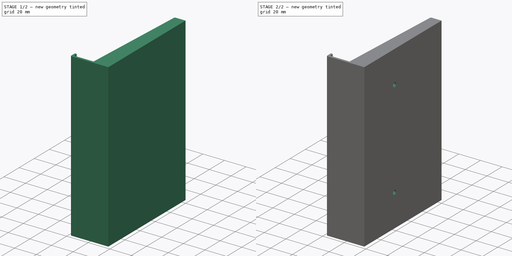
[diagram: build sequence overview — one tinted view per stage of 2, left to right]
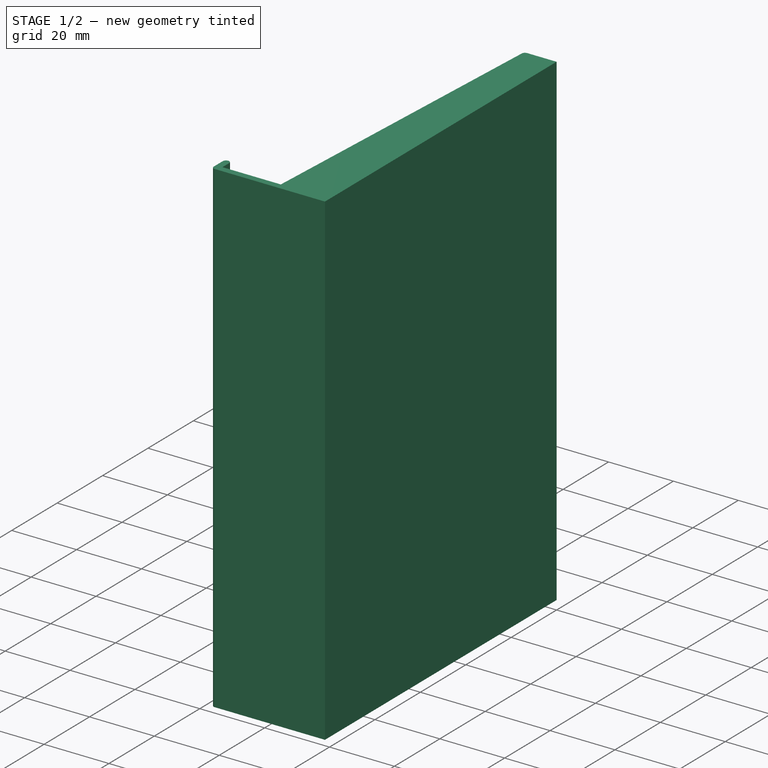
[diagram: stage 1 of 2 — iso view after this stage's code; geometry added in this stage tinted green]
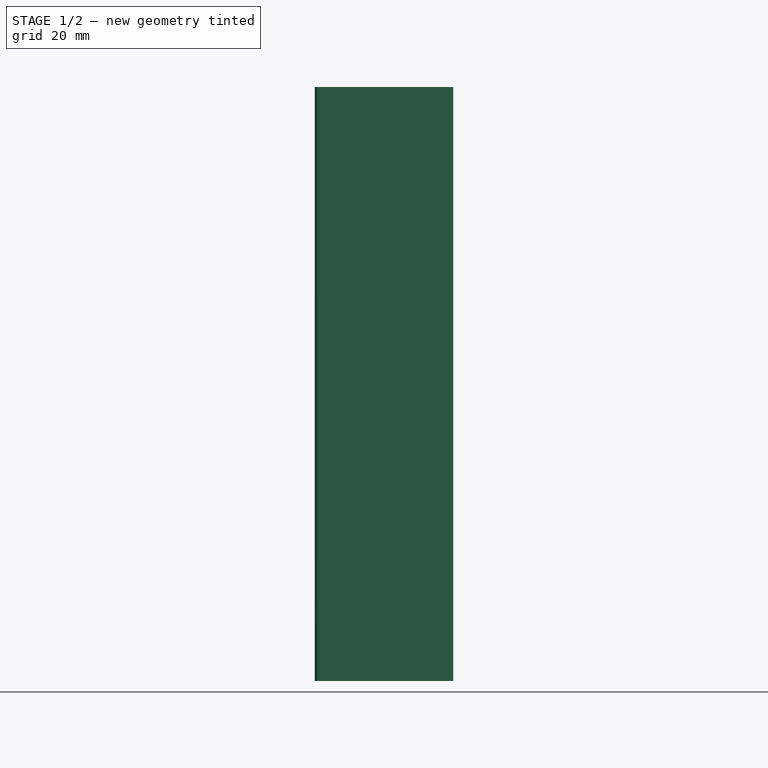
[diagram: stage 1 of 2 — front view after this stage's code; geometry added in this stage tinted green]
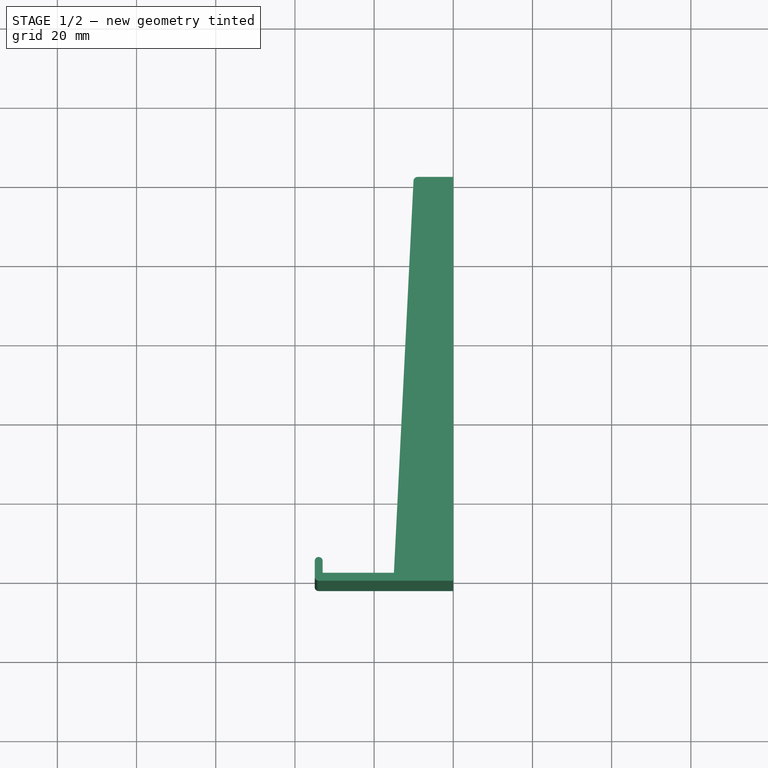
[diagram: stage 1 of 2 — top view after this stage's code; geometry added in this stage tinted green]
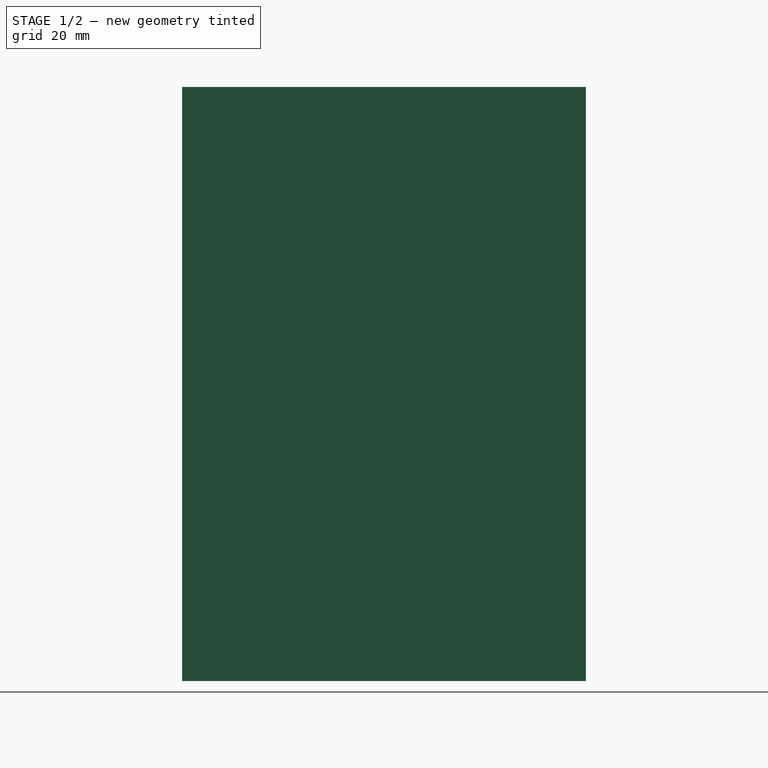
[diagram: stage 1 of 2 — right view after this stage's code; geometry added in this stage tinted green]
FCSTD DOCUMENT  (FreeCAD 0.19R24415 (Git))
Label: tablet-wall-holder
License: All rights reserved
LicenseURL: http://en.wikipedia.org/wiki/All_rights_reserved
objects: Sketcher::SketchObject×3, PartDesign::Pocket×2, PartDesign::Pad×1, PartDesign::Body×1
note: 10 computed .brp shape members not serialized (recipe doc carries the construction recipe); baked Part::Feature solids carry a one-line shape summary decoded from their .brp

FEATURE [Sketcher::SketchObject] Sketch
  FullyConstrained = true
  MapMode = 5
  Support = -> [XY_Plane]
  sketch-geometry (12):
    g0: LineSegment StartX=0 StartY=0 StartZ=0 EndX=-9.04875 EndY=0 EndZ=0
    g1: LineSegment StartX=-10.0475 StartY=-0.950062 StartZ=0 EndX=-15 EndY=-100 EndZ=0
    g2: LineSegment StartX=-15 StartY=-100 StartZ=0 EndX=-33 EndY=-100 EndZ=0
    g3: LineSegment StartX=-33 StartY=-100 StartZ=0 EndX=-33 EndY=-97 EndZ=0
    g4: LineSegment StartX=-35 StartY=-97 StartZ=0 EndX=-35 EndY=-101 EndZ=0
    g5: LineSegment StartX=-34 StartY=-102 StartZ=0 EndX=0 EndY=-102 EndZ=0
    g6: LineSegment StartX=0 StartY=-102 StartZ=0 EndX=0 EndY=0 EndZ=0
    g7: ArcOfCircle CenterX=-9.04875 CenterY=-1 CenterZ=0 NormalX=0 NormalY=0 NormalZ=1 AngleXU=0 Radius=1 StartAngle=1.5708 EndAngle=3.09163
    g8: GeomPoint X=-10 Y=0 Z=0
    g9: ArcOfCircle CenterX=-34 CenterY=-97 CenterZ=0 NormalX=0 NormalY=0 NormalZ=1 AngleXU=0 Radius=1 StartAngle=6.8e-15 EndAngle=3.14159
    g10: ArcOfCircle CenterX=-34 CenterY=-101 CenterZ=0 NormalX=0 NormalY=0 NormalZ=1 AngleXU=0 Radius=1 StartAngle=3.14159 EndAngle=4.71239
    g11: GeomPoint X=-35 Y=-102 Z=0
  constraints (30):
    c: Coincident(g-1,g0)
    c: PointOnObject(g8,g-1)
    c: Coincident(g1,g2)
    c: Horizontal(g2)
    c: Coincident(g2,g3)
    c: PointOnObject(g5,g-2)
    c: Horizontal(g5)
    c: Coincident(g5,g6)
    c: Coincident(g6,g0)
    c: Vertical(g4)
    c: Vertical(g3)
    c: DistanceY(g1,g0) = 100
    c: PointOnObject(g8,g1)
    c: PointOnObject(g8,g0)
    c: Tangent(g1,g7) = -1.5708
    c: Tangent(g0,g7) = -1.5708
    c: Radius(g7) = 1
    c: DistanceX(g8,g0) = 10
    c: DistanceX(g1,g5) = 15
    c: DistanceX(g2,g2) = 18
    c: Tangent(g3,g9) = -1.5708
    c: PointOnObject(g11,g5)
    c: PointOnObject(g11,g4)
    c: Tangent(g5,g10) = -1.5708
    c: Tangent(g4,g10) = -1.5708
    c: DistanceX(g11,g2) = 2
    c: Tangent(g9,g4) = -1.5708
    c: DistanceY(g4,g4) = 4
    c: DistanceY(g5,g1) = 2
    c: Radius(g10) = 1
FEATURE [PartDesign::Pad] Pad
  Direction = (1,1,1)
  Length = 150
  Length2 = 100
  Profile = -> Sketch
  Type = 0
FEATURE [Sketcher::SketchObject] Sketch001
  AttachmentOffset = pos=(0,0,20) rot=(0,0,1;0rad)
  ExternalGeometry = -> [Pad]
  FullyConstrained = true
  MapMode = 5
  Placement = pos=(-20,0,0) rot=(0.57735,-0.57735,-0.57735;2.0944rad)
  Support = -> [Pad]
  sketch-geometry (6):
    g0: LineSegment StartX=102 StartY=0 StartZ=0 EndX=62 EndY=0 EndZ=0
    g1: LineSegment StartX=102 StartY=150 StartZ=0 EndX=62 EndY=150 EndZ=0
    g2: LineSegment StartX=62 StartY=0 StartZ=0 EndX=62 EndY=30 EndZ=0
    g3: LineSegment StartX=62 StartY=150 StartZ=0 EndX=62 EndY=120 EndZ=0
    g4: Circle CenterX=62 CenterY=30 CenterZ=0 NormalX=0 NormalY=0 NormalZ=1 AngleXU=0 Radius=6
    g5: Circle CenterX=62 CenterY=120 CenterZ=0 NormalX=0 NormalY=0 NormalZ=1 AngleXU=0 Radius=6
  constraints (16):
    c: Coincident(g0,g-4)
    c: Horizontal(g0)
    c: Coincident(g1,g-3)
    c: Horizontal(g1)
    c: Equal(g0,g1)
    c: DistanceX(g0,g0) = 40
    c: Coincident(g2,g0)
    c: Vertical(g2)
    c: Coincident(g3,g1)
    c: Vertical(g3)
    c: Equal(g3,g2)
    c: DistanceY(g2,g2) = 30
    c: Coincident(g4,g2)
    c: Radius(g4) = 6
    c: Coincident(g5,g3)
    c: Equal(g4,g5)
FEATURE [PartDesign::Pocket] Pocket
  BaseFeature = -> Pad
  Length = 18
  Length2 = 100
  Profile = -> Sketch001
  Type = 0
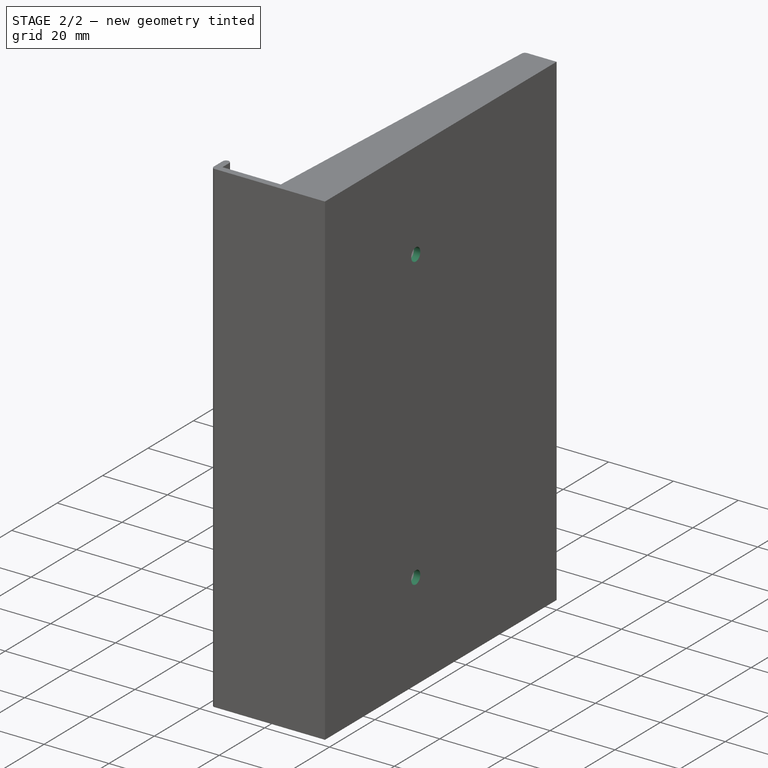
[diagram: stage 2 of 2 — iso view after this stage's code; geometry added in this stage tinted green]
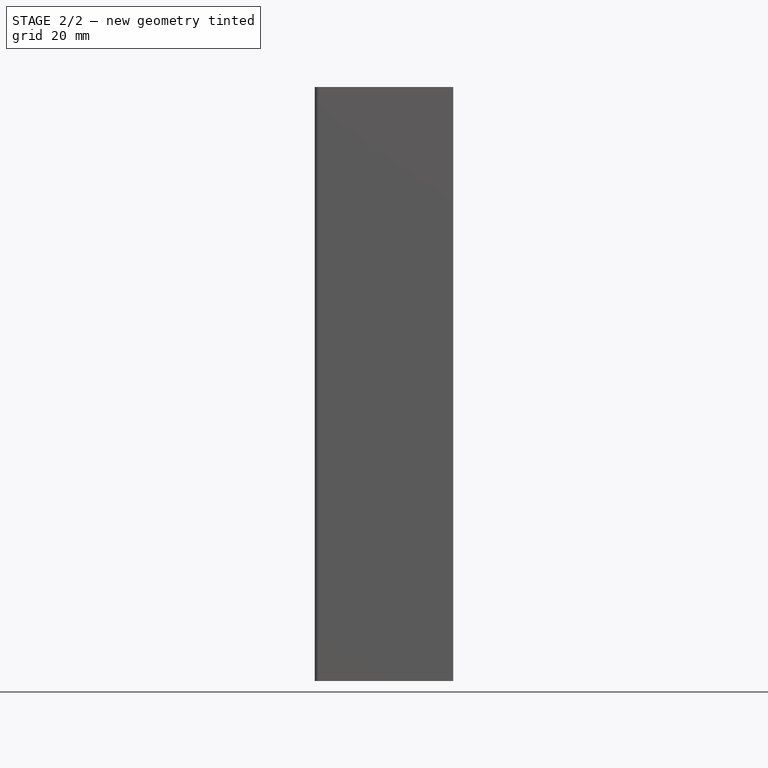
[diagram: stage 2 of 2 — front view after this stage's code; geometry added in this stage tinted green]
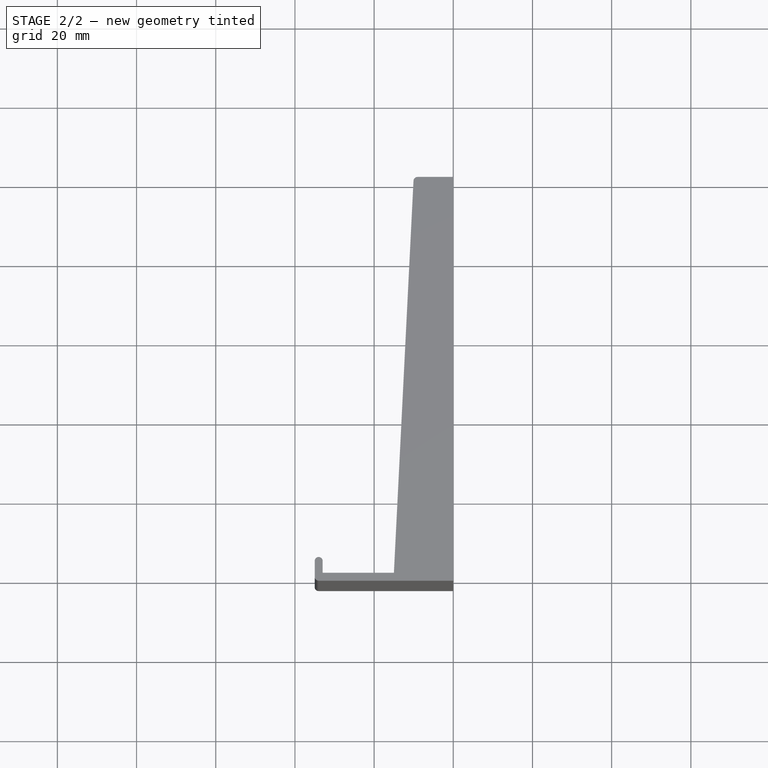
[diagram: stage 2 of 2 — top view after this stage's code; geometry added in this stage tinted green]
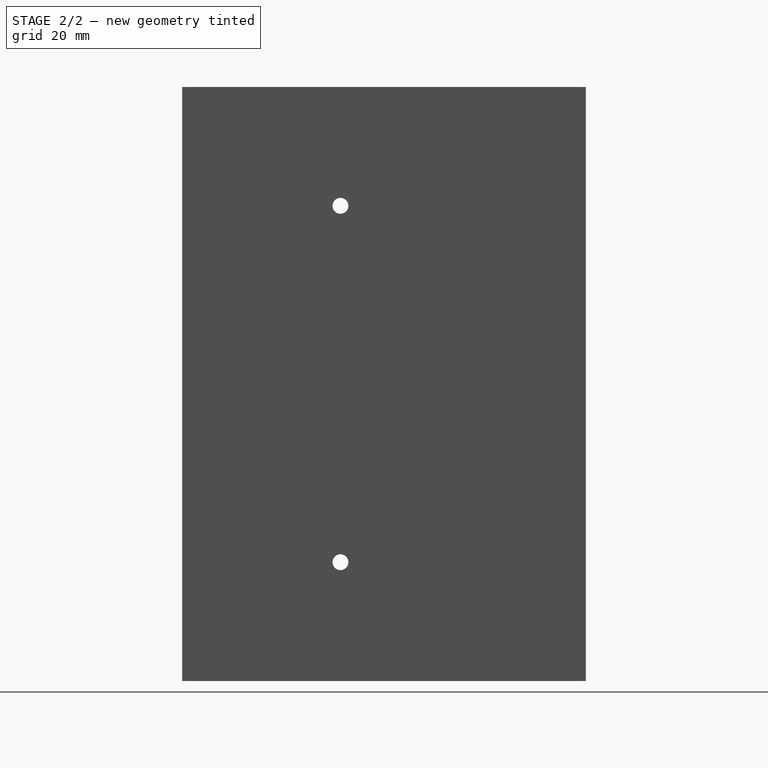
[diagram: stage 2 of 2 — right view after this stage's code; geometry added in this stage tinted green]
FEATURE [Sketcher::SketchObject] Sketch002
  ExternalGeometry = -> [Pocket]
  FullyConstrained = true
  MapMode = 5
  Placement = pos=(-2,0,0) rot=(0.57735,-0.57735,-0.57735;2.0944rad)
  Support = -> [Pocket]
  sketch-geometry (2):
    g0: Circle CenterX=62 CenterY=120 CenterZ=0 NormalX=0 NormalY=0 NormalZ=1 AngleXU=0 Radius=2
    g1: Circle CenterX=62 CenterY=30 CenterZ=0 NormalX=0 NormalY=0 NormalZ=1 AngleXU=0 Radius=2
  constraints (4):
    c: Coincident(g0,g-3)
    c: Coincident(g1,g-4)
    c: Equal(g1,g0)
    c: Radius(g0) = 2
FEATURE [PartDesign::Pocket] Pocket001
  BaseFeature = -> Pocket
  Length = 5
  Length2 = 100
  Profile = -> Sketch002
  Type = 1
FEATURE [PartDesign::Body] Body
  Group = -> [Sketch,Pad,Sketch001,Pocket,Sketch002,Pocket001]
  Origin = -> Origin
  Tip = -> Pocket001
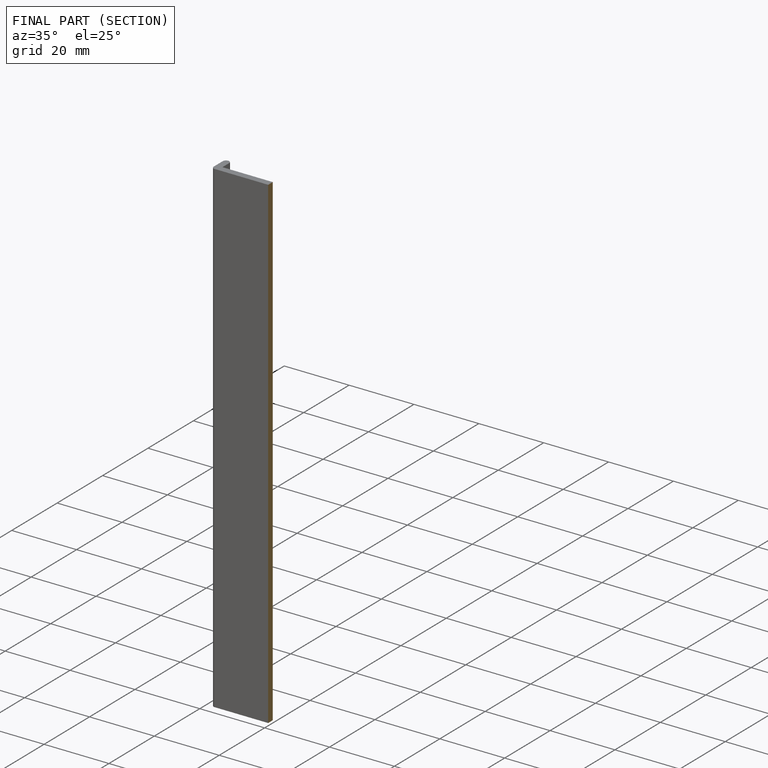
[diagram: finished part — half-section view (interior)]
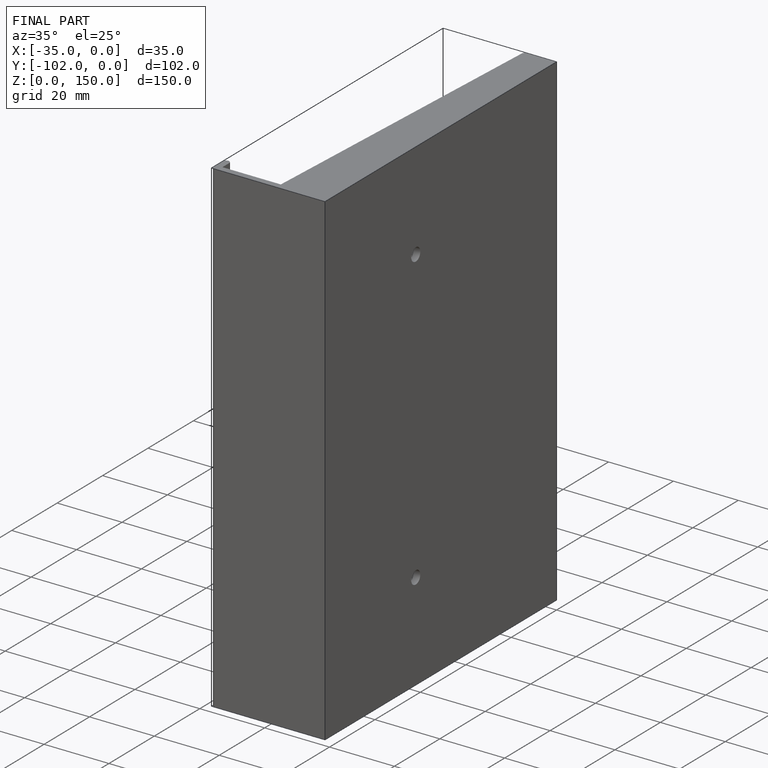
[diagram: finished part — iso view with bounding-box wireframe]
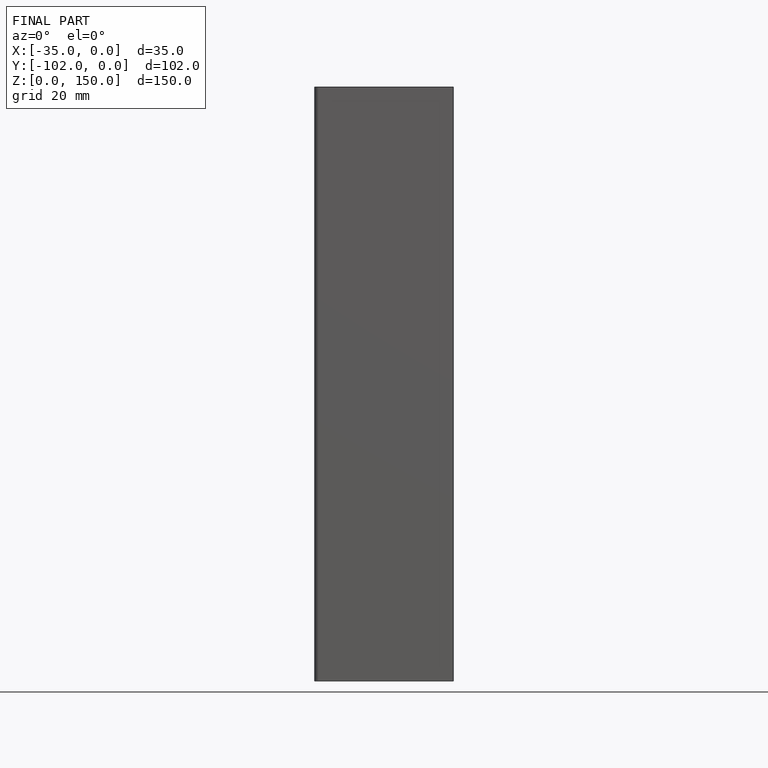
[diagram: finished part — front view with bounding-box wireframe]
